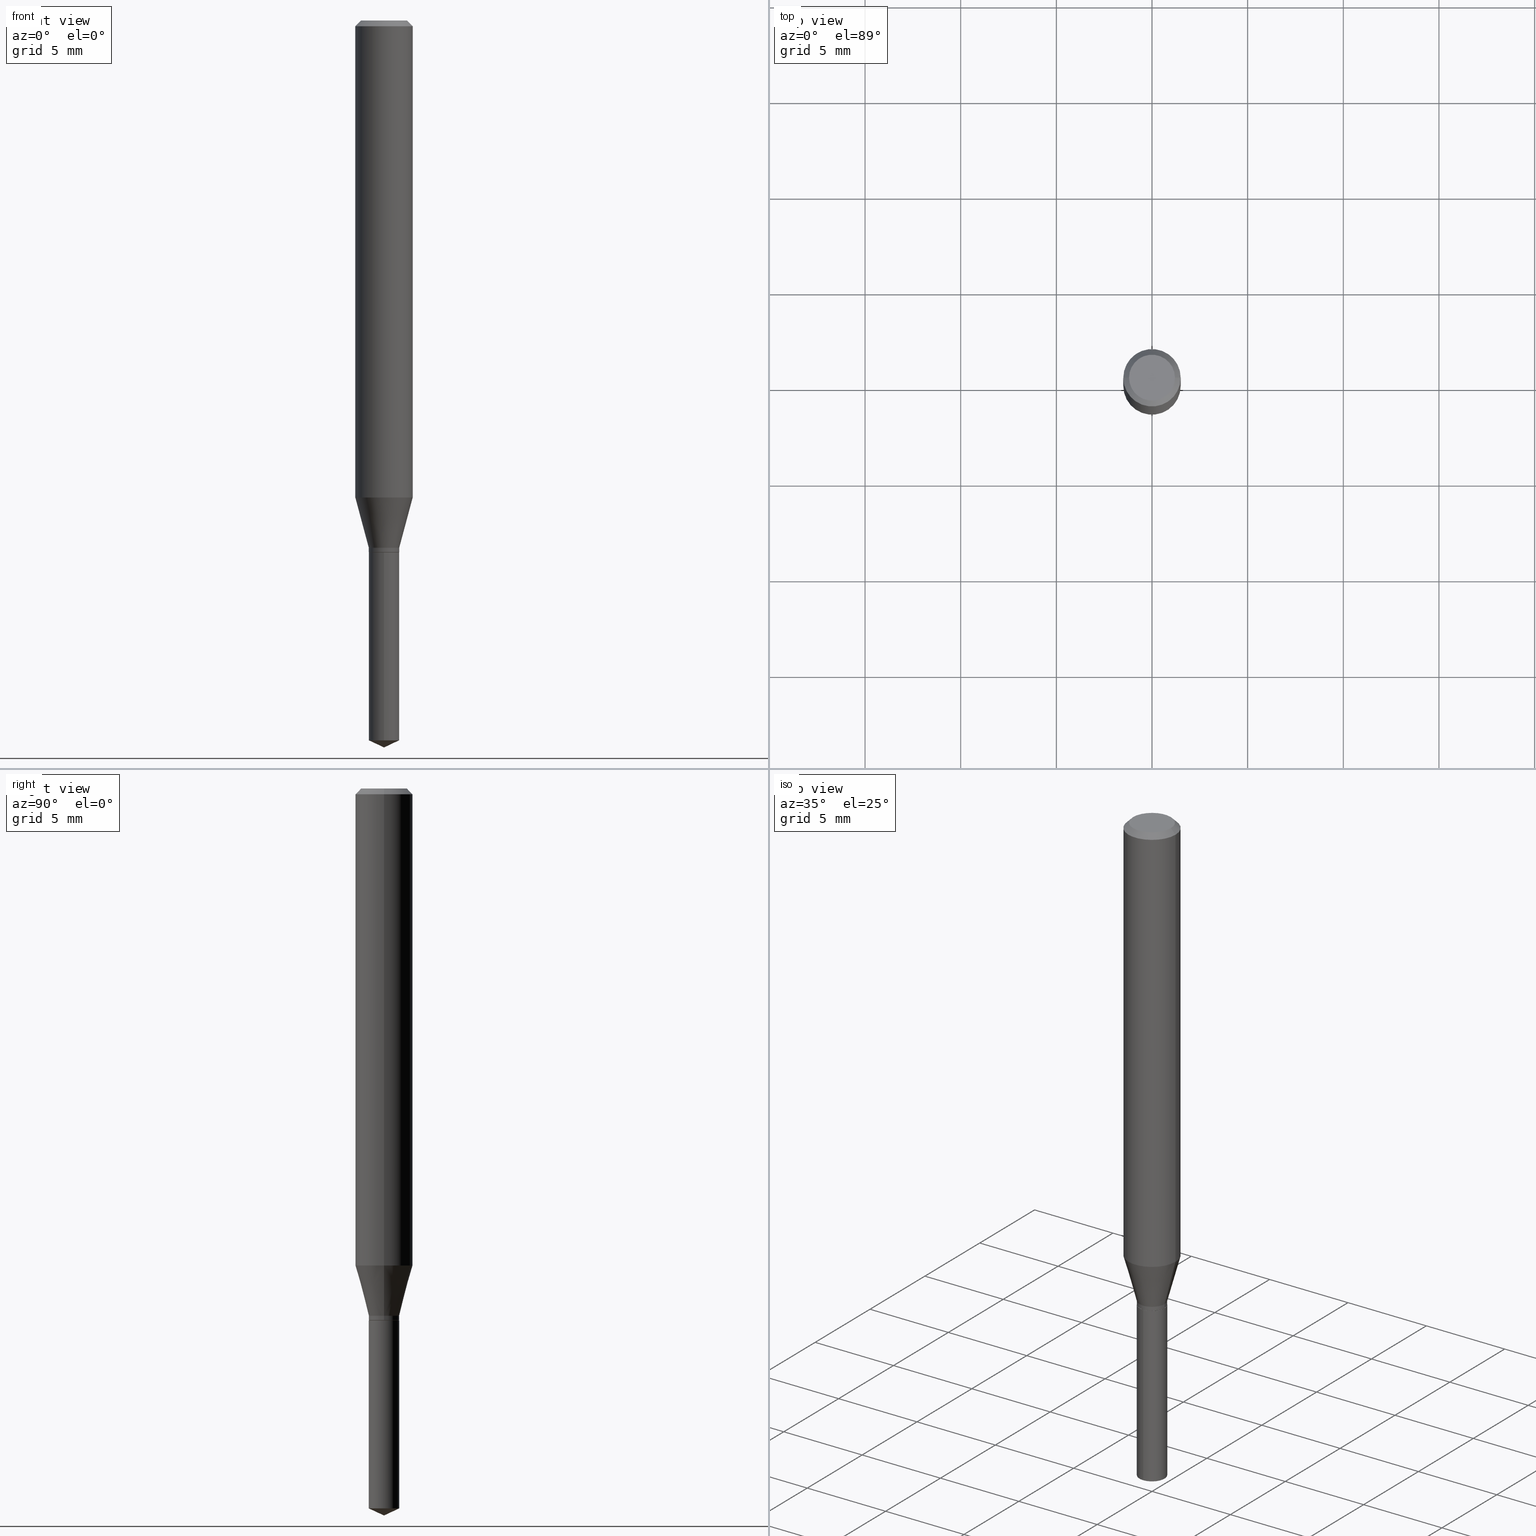
[diagram: canonical four-view strip — front | top / right | iso, engineering-drawing reading convention]
A machine part, canonical four-view strip (front | top / right | iso — engineering-drawing reading convention). The complete STEP part file that produces these views, byte-faithful:
ISO-10303-21;
HEADER;
FILE_DESCRIPTION (( 'STEP AP203' ),
    '1' );
FILE_NAME ('07551.STEP',
    '2024-04-23T22:50:01',
    ( '' ),
    ( '' ),
    'SwSTEP 2.0',
    'SolidWorks 2023',
    '' );
FILE_SCHEMA (( 'CONFIG_CONTROL_DESIGN' ));
ENDSEC;

DATA;
#1 = CARTESIAN_POINT ( 'NONE',  ( 2.676565608369632355E-29, -3.821426325363822773E-15, -1.094500000000000028 ) ) ;
#2 = FACE_OUTER_BOUND ( 'NONE', #464, .T. ) ;
#3 = CARTESIAN_POINT ( 'NONE',  ( -0.03080000000000000099, -3.599929935575601152E-15, -1.094500000000000028 ) ) ;
#4 = VECTOR ( 'NONE', #74, 39.37007874015748143 ) ;
#5 = APPROVAL_PERSON_ORGANIZATION ( #451, #255, #110 ) ;
#6 = LINE ( 'NONE', #230, #221 ) ;
#7 = DIRECTION ( 'NONE',  ( 0.7071067811865453523, -7.319954787623248157E-15, -0.7071067811865496822 ) ) ;
#8 = DIRECTION ( 'NONE',  ( -2.445468806185136597E-29, 3.491481338843145583E-15, 1.000000000000000000 ) ) ;
#9 = EDGE_LOOP ( 'NONE', ( #239, #293 ) ) ;
#10 = CIRCLE ( 'NONE', #340, 0.03080000000000000099 ) ;
#11 = ORIENTED_EDGE ( 'NONE', *, *, #67, .T. ) ;
#12 = AXIS2_PLACEMENT_3D ( 'NONE', #460, #126, #418 ) ;
#13 = CARTESIAN_POINT ( 'NONE',  ( -0.03080000000000000099, -3.602579162749712353E-15, -1.094500000000000028 ) ) ;
#14 = ADVANCED_FACE ( 'NONE', ( #317 ), #132, .F. ) ;
#15 = VERTEX_POINT ( 'NONE', #207 ) ;
#16 = VERTEX_POINT ( 'NONE', #303 ) ;
#17 = DIRECTION ( 'NONE',  ( 2.445470214571801836E-29, -3.491479321953280158E-15, -1.000000000000000000 ) ) ;
#18 = ADVANCED_FACE ( 'NONE', ( #432 ), #374, .T. ) ;
#19 = DIRECTION ( 'NONE',  ( -6.982962677686265922E-15, -1.000000000000000000, 4.363974430773583610E-15 ) ) ;
#20 = PRODUCT_DEFINITION ( 'UNKNOWN', '', #57, #445 ) ;
#21 = DATE_TIME_ROLE ( 'classification_date' ) ;
#22 =( NAMED_UNIT ( * ) PLANE_ANGLE_UNIT ( ) SI_UNIT ( $, .RADIAN. ) );
#23 = UNCERTAINTY_MEASURE_WITH_UNIT (LENGTH_MEASURE( 1.000000000000000082E-05 ), #271, 'distance_accuracy_value', 'NONE');
#24 = DIRECTION ( 'NONE',  ( -2.445468806185136597E-29, 3.491481338843145583E-15, 1.000000000000000000 ) ) ;
#25 = VERTEX_POINT ( 'NONE', #243 ) ;
#26 = PERSON_AND_ORGANIZATION ( #196, #437 ) ;
#27 = VECTOR ( 'NONE', #145, 39.37007874015748143 ) ;
#28 = DIRECTION ( 'NONE',  ( -2.445470214571802116E-29, 3.491479321953280158E-15, 1.000000000000000000 ) ) ;
#29 = AXIS2_PLACEMENT_3D ( 'NONE', #118, #217, #363 ) ;
#30 = APPROVAL_DATE_TIME ( #68, #261 ) ;
#31 = EDGE_CURVE ( 'NONE', #472, #276, #198, .T. ) ;
#32 = CARTESIAN_POINT ( 'NONE',  ( 2.653578201591491275E-29, -3.788606400778696929E-15, -1.085099999999999953 ) ) ;
#33 = ORIENTED_EDGE ( 'NONE', *, *, #463, .F. ) ;
#34 = DIRECTION ( 'NONE',  ( -2.445468806185136597E-29, 3.491481338843145583E-15, 1.000000000000000000 ) ) ;
#35 = ORIENTED_EDGE ( 'NONE', *, *, #289, .F. ) ;
#36 = COORDINATED_UNIVERSAL_TIME_OFFSET ( 5, 0, .BEHIND. ) ;
#37 = DIRECTION ( 'NONE',  ( 1.000000000000000000, -6.982962677686266711E-15, 0.000000000000000000 ) ) ;
#38 = VECTOR ( 'NONE', #398, 39.37007874015748143 ) ;
#39 = AXIS2_PLACEMENT_3D ( 'NONE', #344, #8, #232 ) ;
#40 = FACE_OUTER_BOUND ( 'NONE', #200, .T. ) ;
#41 = CARTESIAN_POINT ( 'NONE',  ( 3.658668015054778287E-29, -5.223602213574301462E-15, -1.496099999999999985 ) ) ;
#42 = DIRECTION ( 'NONE',  ( 2.445468806185136597E-29, -3.491481338843145583E-15, -1.000000000000000000 ) ) ;
#43 = EDGE_CURVE ( 'NONE', #15, #472, #173, .T. ) ;
#44 = FACE_OUTER_BOUND ( 'NONE', #140, .T. ) ;
#45 = AXIS2_PLACEMENT_3D ( 'NONE', #462, #87, #378 ) ;
#46 = CARTESIAN_POINT ( 'NONE',  ( 3.622973757940826067E-29, -5.172644780066808928E-15, -1.481504570299748691 ) ) ;
#47 = LINE ( 'NONE', #353, #347 ) ;
#48 = DATE_AND_TIME ( #187, #367 ) ;
#49 = DIRECTION ( 'NONE',  ( -6.982962677686265922E-15, -1.000000000000000000, 0.000000000000000000 ) ) ;
#50 = ORIENTED_EDGE ( 'NONE', *, *, #289, .T. ) ;
#51 = ORIENTED_EDGE ( 'NONE', *, *, #394, .F. ) ;
#52 = DIRECTION ( 'NONE',  ( -2.445468806185136597E-29, 3.491481338843145583E-15, 1.000000000000000000 ) ) ;
#53 = DIRECTION ( 'NONE',  ( 1.000000000000000000, -6.982962677686265922E-15, 4.876176775795935793E-29 ) ) ;
#54 = EDGE_CURVE ( 'NONE', #25, #355, #473, .T. ) ;
#55 = CLOSED_SHELL ( 'NONE', ( #152, #248, #18, #307, #455 ) ) ;
#56 = AXIS2_PLACEMENT_3D ( 'NONE', #328, #409, #252 ) ;
#57 = PRODUCT_DEFINITION_FORMATION_WITH_SPECIFIED_SOURCE ( 'ANY', '', #385, .NOT_KNOWN. ) ;
#58 = CARTESIAN_POINT ( 'NONE',  ( 0.05905000000000011628, -3.839357142326876836E-15, -0.9815355900899632724 ) ) ;
#59 = DIRECTION ( 'NONE',  ( 1.000000000000000000, -6.982962677686273810E-15, 0.000000000000000000 ) ) ;
#60 = FACE_OUTER_BOUND ( 'NONE', #81, .T. ) ;
#61 = VECTOR ( 'NONE', #305, 39.37007874015748143 ) ;
#62 = AXIS2_PLACEMENT_3D ( 'NONE', #202, #233, #266 ) ;
#63 = ORIENTED_EDGE ( 'NONE', *, *, #361, .T. ) ;
#64 = DIRECTION ( 'NONE',  ( 6.982962677686265922E-15, 1.000000000000000000, -3.491479321953280158E-15 ) ) ;
#65 = CALENDAR_DATE ( 2024, 23, 4 ) ;
#66 = CARTESIAN_POINT ( 'NONE',  ( -9.261968845786000133E-28, 1.322362114038720264E-13, 37.87397874015748300 ) ) ;
#67 = EDGE_CURVE ( 'NONE', #326, #384, #149, .T. ) ;
#68 = DATE_AND_TIME ( #65, #285 ) ;
#69 = AXIS2_PLACEMENT_3D ( 'NONE', #32, #370, #487 ) ;
#70 = CYLINDRICAL_SURFACE ( 'NONE', #264, 0.03130000000000000143 ) ;
#71 = CONICAL_SURFACE ( 'NONE', #399, 0.03080000000000000099, 0.7853981633972775267 ) ;
#72 = ORIENTED_EDGE ( 'NONE', *, *, #228, .F. ) ;
#73 = CALENDAR_DATE ( 2024, 23, 4 ) ;
#74 = DIRECTION ( 'NONE',  ( -6.328713451373384367E-15, -0.9063077870366504918, 0.4226182617406983866 ) ) ;
#75 = ORIENTED_EDGE ( 'NONE', *, *, #388, .T. ) ;
#76 = LINE ( 'NONE', #222, #478 ) ;
#77 = EDGE_CURVE ( 'NONE', #355, #326, #253, .T. ) ;
#78 = CARTESIAN_POINT ( 'NONE',  ( 0.000000000000000000, 0.000000000000000000, 0.000000000000000000 ) ) ;
#79 = AXIS2_PLACEMENT_3D ( 'NONE', #254, #28, #415 ) ;
#80 = CONICAL_SURFACE ( 'NONE', #106, 84.42940631927498885, 1.134464013796318893 ) ;
#81 = EDGE_LOOP ( 'NONE', ( #11, #400, #235, #35 ) ) ;
#82 = LINE ( 'NONE', #41, #416 ) ;
#83 = CARTESIAN_POINT ( 'NONE',  ( 3.622973757940826067E-29, -5.172644780066808928E-15, -1.481504570299748691 ) ) ;
#84 =( LENGTH_UNIT ( ) NAMED_UNIT ( * ) SI_UNIT ( $, .METRE. ) );
#85 = DIRECTION ( 'NONE',  ( -2.445468806185136597E-29, 3.491481338843145583E-15, 1.000000000000000000 ) ) ;
#86 = EDGE_LOOP ( 'NONE', ( #282, #366, #263, #425 ) ) ;
#87 = DIRECTION ( 'NONE',  ( 2.438088387897960049E-29, -3.491481338843145188E-15, -1.000000000000000000 ) ) ;
#88 = VECTOR ( 'NONE', #471, 39.37007874015748143 ) ;
#89 = VECTOR ( 'NONE', #262, 39.37007874015748143 ) ;
#90 = ORIENTED_EDGE ( 'NONE', *, *, #111, .F. ) ;
#91 = FACE_OUTER_BOUND ( 'NONE', #483, .T. ) ;
#92 = VERTEX_POINT ( 'NONE', #58 ) ;
#93 = ADVANCED_FACE ( 'NONE', ( #60 ), #424, .T. ) ;
#94 = DIRECTION ( 'NONE',  ( -2.445468806185136597E-29, 3.491481338843145583E-15, 1.000000000000000000 ) ) ;
#95 = CARTESIAN_POINT ( 'NONE',  ( -9.261968845786000133E-28, 1.322362114038720264E-13, 37.87397874015748300 ) ) ;
#96 = AXIS2_PLACEMENT_3D ( 'NONE', #486, #338, #108 ) ;
#97 = CIRCLE ( 'NONE', #169, 0.03130000000000000143 ) ;
#98 = ORIENTED_EDGE ( 'NONE', *, *, #283, .T. ) ;
#99 = CARTESIAN_POINT ( 'NONE',  ( 0.03130000000000000143, -2.185667318115801601E-16, 1.526243330824128031E-30 ) ) ;
#100 = COORDINATED_UNIVERSAL_TIME_OFFSET ( 5, 0, .BEHIND. ) ;
#101 = ORIENTED_EDGE ( 'NONE', *, *, #477, .F. ) ;
#102 = CONICAL_SURFACE ( 'NONE', #426, 0.05904999999999999832, 0.7853981633974452814 ) ;
#103 = EDGE_CURVE ( 'NONE', #16, #384, #212, .T. ) ;
#104 = ORIENTED_EDGE ( 'NONE', *, *, #123, .T. ) ;
#105 = DIRECTION ( 'NONE',  ( -2.445468806185136597E-29, 3.491481338843145583E-15, 1.000000000000000000 ) ) ;
#106 = AXIS2_PLACEMENT_3D ( 'NONE', #66, #193, #308 ) ;
#107 = DIRECTION ( 'NONE',  ( -2.445468806185136597E-29, 3.491481338843145583E-15, 1.000000000000000000 ) ) ;
#108 = DIRECTION ( 'NONE',  ( 1.000000000000000000, -6.982962677686266711E-15, 0.000000000000000000 ) ) ;
#109 = ORIENTED_EDGE ( 'NONE', *, *, #77, .T. ) ;
#110 = APPROVAL_ROLE ( '' ) ;
#111 = EDGE_CURVE ( 'NONE', #144, #191, #225, .T. ) ;
#112 = EDGE_LOOP ( 'NONE', ( #101, #204, #234 ) ) ;
#113 = CYLINDRICAL_SURFACE ( 'NONE', #458, 0.05905000000000006077 ) ;
#114 = EDGE_LOOP ( 'NONE', ( #359, #184, #325, #322 ) ) ;
#115 = PERSON_AND_ORGANIZATION_ROLE ( 'design_supplier' ) ;
#116 = DIRECTION ( 'NONE',  ( 1.000000000000000000, -6.982962677686266711E-15, 4.876185090822587894E-29 ) ) ;
#117 = ADVANCED_FACE ( 'NONE', ( #189 ), #226, .T. ) ;
#118 = CARTESIAN_POINT ( 'NONE',  ( 2.675342873966538993E-29, -3.819680584694400481E-15, -1.093999999999999861 ) ) ;
#119 = CC_DESIGN_APPROVAL ( #430, ( #20 ) ) ;
#120 = CC_DESIGN_SECURITY_CLASSIFICATION ( #247, ( #57 ) ) ;
#121 = CARTESIAN_POINT ( 'NONE',  ( 0.000000000000000000, 0.000000000000000000, 0.000000000000000000 ) ) ;
#122 = CARTESIAN_POINT ( 'NONE',  ( 2.888098660104664204E-31, -4.123439461173780263E-17, -0.01181000000000007218 ) ) ;
#123 = EDGE_CURVE ( 'NONE', #319, #25, #10, .T. ) ;
#124 = PRODUCT_DEFINITION_SHAPE ( 'NONE', 'NONE',  #20 ) ;
#125 = CYLINDRICAL_SURFACE ( 'NONE', #375, 0.03130000000000000143 ) ;
#126 = DIRECTION ( 'NONE',  ( -2.445468806185136597E-29, 3.491481338843145583E-15, 1.000000000000000000 ) ) ;
#127 = ORIENTED_EDGE ( 'NONE', *, *, #67, .F. ) ;
#128 = DIRECTION ( 'NONE',  ( -0.7071067811864267805, 7.493145998869918709E-15, 0.7071067811866682540 ) ) ;
#129 = AXIS2_PLACEMENT_3D ( 'NONE', #122, #42, #280 ) ;
#130 = ORIENTED_EDGE ( 'NONE', *, *, #273, .F. ) ;
#131 = DIRECTION ( 'NONE',  ( 0.2588190451025211281, 1.565188264969623940E-15, 0.9659258262890682012 ) ) ;
#132 = PLANE ( 'NONE',  #219 ) ;
#133 = ORIENTED_EDGE ( 'NONE', *, *, #134, .T. ) ;
#134 = EDGE_CURVE ( 'NONE', #276, #472, #291, .T. ) ;
#135 = DIRECTION ( 'NONE',  ( -2.445468806185136597E-29, 3.491481338843145583E-15, 1.000000000000000000 ) ) ;
#136 = CONICAL_SURFACE ( 'NONE', #407, 0.03080000000000000099, 0.7853981633972775267 ) ;
#137 = ORIENTED_EDGE ( 'NONE', *, *, #394, .T. ) ;
#138 = DIRECTION ( 'NONE',  ( -2.445470214571802116E-29, 3.491479321953280158E-15, 1.000000000000000000 ) ) ;
#139 = EDGE_LOOP ( 'NONE', ( #215, #63, #229, #443 ) ) ;
#140 = EDGE_LOOP ( 'NONE', ( #251, #284, #448, #278 ) ) ;
#141 = ADVANCED_FACE ( 'NONE', ( #456 ), #181, .T. ) ;
#142 = VECTOR ( 'NONE', #244, 39.37007874015748143 ) ;
#143 = CIRCLE ( 'NONE', #354, 0.05905000000000011628 ) ;
#144 = VERTEX_POINT ( 'NONE', #341 ) ;
#145 = DIRECTION ( 'NONE',  ( -0.7071067811865453523, 2.468850131082234184E-15, -0.7071067811865496822 ) ) ;
#146 = VERTEX_POINT ( 'NONE', #343 ) ;
#147 = CALENDAR_DATE ( 2024, 23, 4 ) ;
#148 = FACE_OUTER_BOUND ( 'NONE', #114, .T. ) ;
#149 = CIRCLE ( 'NONE', #364, 0.03130000000000000143 ) ;
#150 = CIRCLE ( 'NONE', #241, 0.05904999999999999832 ) ;
#151 = DIRECTION ( 'NONE',  ( 1.000000000000000000, -6.982962677686273810E-15, 0.000000000000000000 ) ) ;
#152 = ADVANCED_FACE ( 'NONE', ( #148 ), #70, .T. ) ;
#153 = PERSON_AND_ORGANIZATION_ROLE ( 'design_owner' ) ;
#154 = LINE ( 'NONE', #258, #4 ) ;
#155 = DIRECTION ( 'NONE',  ( -2.445470214571802116E-29, 3.491479321953280158E-15, 1.000000000000000000 ) ) ;
#156 = EDGE_CURVE ( 'NONE', #92, #175, #76, .T. ) ;
#157 = DIRECTION ( 'NONE',  ( 1.000000000000000000, -6.982962677686273810E-15, 0.000000000000000000 ) ) ;
#158 = AXIS2_PLACEMENT_3D ( 'NONE', #249, #17, #64 ) ;
#159 = CARTESIAN_POINT ( 'NONE',  ( 2.400314667725525909E-29, -3.427013196209501521E-15, -0.9815355900899632724 ) ) ;
#160 = DIRECTION ( 'NONE',  ( -1.000000000000000000, 6.982962677686266711E-15, 0.000000000000000000 ) ) ;
#161 = LENGTH_MEASURE_WITH_UNIT ( LENGTH_MEASURE( 0.02539999999999999897 ), #84 );
#162 = PLANE ( 'NONE',  #45 ) ;
#163 = ORIENTED_EDGE ( 'NONE', *, *, #156, .T. ) ;
#164 = AXIS2_PLACEMENT_3D ( 'NONE', #348, #274, #459 ) ;
#165 = ORIENTED_EDGE ( 'NONE', *, *, #31, .T. ) ;
#166 = DIRECTION ( 'NONE',  ( -2.445470214571802396E-29, 3.491479321953280158E-15, 1.000000000000000000 ) ) ;
#167 = EDGE_CURVE ( 'NONE', #355, #16, #179, .T. ) ;
#168 = CC_DESIGN_PERSON_AND_ORGANIZATION_ASSIGNMENT ( #192, #306, ( #57 ) ) ;
#169 = AXIS2_PLACEMENT_3D ( 'NONE', #316, #94, #157 ) ;
#170 = VERTEX_POINT ( 'NONE', #452 ) ;
#171 = DIRECTION ( 'NONE',  ( 1.000000000000000000, -6.982962677686273810E-15, 0.000000000000000000 ) ) ;
#172 = EDGE_LOOP ( 'NONE', ( #474, #75, #50, #453 ) ) ;
#173 = LINE ( 'NONE', #250, #88 ) ;
#174 = EDGE_CURVE ( 'NONE', #146, #191, #368, .T. ) ;
#175 = VERTEX_POINT ( 'NONE', #183 ) ;
#176 = PERSON_AND_ORGANIZATION ( #196, #437 ) ;
#177 = ORIENTED_EDGE ( 'NONE', *, *, #167, .F. ) ;
#178 = APPROVAL_STATUS ( 'not_yet_approved' ) ;
#179 = CIRCLE ( 'NONE', #457, 0.03130000000000000143 ) ;
#180 = CIRCLE ( 'NONE', #12, 0.04724000000000000421 ) ;
#181 = CYLINDRICAL_SURFACE ( 'NONE', #208, 0.05905000000000006077 ) ;
#182 = EDGE_LOOP ( 'NONE', ( #51, #371 ) ) ;
#183 = CARTESIAN_POINT ( 'NONE',  ( 0.05904999999999999832, -4.535783407291118600E-16, -0.01181000000000007218 ) ) ;
#184 = ORIENTED_EDGE ( 'NONE', *, *, #43, .T. ) ;
#185 = DIRECTION ( 'NONE',  ( -2.445468806185136877E-29, 3.491481338843145188E-15, 1.000000000000000000 ) ) ;
#186 = EDGE_LOOP ( 'NONE', ( #137, #98, #177, #259 ) ) ;
#187 = CALENDAR_DATE ( 2024, 23, 4 ) ;
#188 = AXIS2_PLACEMENT_3D ( 'NONE', #46, #417, #461 ) ;
#189 = FACE_OUTER_BOUND ( 'NONE', #172, .T. ) ;
#190 = EDGE_CURVE ( 'NONE', #175, #191, #310, .T. ) ;
#191 = VERTEX_POINT ( 'NONE', #446 ) ;
#192 = PERSON_AND_ORGANIZATION ( #196, #437 ) ;
#193 = DIRECTION ( 'NONE',  ( -2.445470214571802116E-29, 3.491479321953280158E-15, 1.000000000000000000 ) ) ;
#194 = EDGE_CURVE ( 'NONE', #384, #144, #376, .T. ) ;
#195 = DIRECTION ( 'NONE',  ( 1.000000000000000000, -6.982962677686272233E-15, 0.000000000000000000 ) ) ;
#196 = PERSON ( 'UNSPECIFIED', 'UNSPECIFIED', 'UNSPECIFIED', ('UNSPECIFIED'), ('UNSPECIFIED'), ('UNSPECIFIED') ) ;
#197 = DIRECTION ( 'NONE',  ( 1.000000000000000000, -6.982962677686272233E-15, 0.000000000000000000 ) ) ;
#198 = CIRCLE ( 'NONE', #406, 0.03130000000000000143 ) ;
#199 = VECTOR ( 'NONE', #128, 39.37007874015748143 ) ;
#200 = EDGE_LOOP ( 'NONE', ( #72, #468, #480 ) ) ;
#201 = DIRECTION ( 'NONE',  ( 2.445468806185136597E-29, -3.491481338843145583E-15, -1.000000000000000000 ) ) ;
#202 = CARTESIAN_POINT ( 'NONE',  ( 0.000000000000000000, 0.000000000000000000, 0.000000000000000000 ) ) ;
#203 = EDGE_CURVE ( 'NONE', #191, #175, #150, .T. ) ;
#204 = ORIENTED_EDGE ( 'NONE', *, *, #228, .T. ) ;
#205 = ORIENTED_EDGE ( 'NONE', *, *, #174, .T. ) ;
#206 = FACE_OUTER_BOUND ( 'NONE', #238, .T. ) ;
#207 = CARTESIAN_POINT ( 'NONE',  ( 2.223998762929476067E-16, 0.03129999999999482502, -1.481504570299748691 ) ) ;
#208 = AXIS2_PLACEMENT_3D ( 'NONE', #302, #482, #405 ) ;
#209 =( GEOMETRIC_REPRESENTATION_CONTEXT ( 3 ) GLOBAL_UNCERTAINTY_ASSIGNED_CONTEXT ( ( #23 ) ) GLOBAL_UNIT_ASSIGNED_CONTEXT ( ( #271, #22, #360 ) ) REPRESENTATION_CONTEXT ( 'NONE', 'WORKASPACE' ) );
#210 = CARTESIAN_POINT ( 'NONE',  ( 2.676565608369631794E-29, -3.821426325363822773E-15, -1.094499999999999806 ) ) ;
#211 = CC_DESIGN_DATE_AND_TIME_ASSIGNMENT ( #299, #444, ( #20 ) ) ;
#212 = LINE ( 'NONE', #213, #391 ) ;
#213 = CARTESIAN_POINT ( 'NONE',  ( -0.03130000000000000143, 2.223998762929113684E-16, -1.539626683249785616E-30 ) ) ;
#214 = CIRCLE ( 'NONE', #488, 0.04724000000000000421 ) ;
#215 = ORIENTED_EDGE ( 'NONE', *, *, #43, .F. ) ;
#216 = PERSON_AND_ORGANIZATION ( #196, #437 ) ;
#217 = DIRECTION ( 'NONE',  ( -2.445468806185136597E-29, 3.491481338843145583E-15, 1.000000000000000000 ) ) ;
#218 = EDGE_CURVE ( 'NONE', #144, #92, #143, .T. ) ;
#219 = AXIS2_PLACEMENT_3D ( 'NONE', #281, #237, #53 ) ;
#220 = ORIENTED_EDGE ( 'NONE', *, *, #218, .T. ) ;
#221 = VECTOR ( 'NONE', #7, 39.37007874015748143 ) ;
#222 = CARTESIAN_POINT ( 'NONE',  ( 0.05905000000000006077, -4.123439461173744764E-16, 2.879382386107503023E-30 ) ) ;
#223 = APPROVAL_STATUS ( 'not_yet_approved' ) ;
#224 = CARTESIAN_POINT ( 'NONE',  ( -0.03130000000000000143, -3.566206524485785609E-15, -1.085099999999999953 ) ) ;
#225 = LINE ( 'NONE', #414, #61 ) ;
#226 = CONICAL_SURFACE ( 'NONE', #69, 0.03130000000000000143, 0.2617993877991497964 ) ;
#227 = DIRECTION ( 'NONE',  ( 1.000000000000000000, -6.982962677686266711E-15, 4.876176775795935793E-29 ) ) ;
#228 = EDGE_CURVE ( 'NONE', #395, #428, #154, .T. ) ;
#229 = ORIENTED_EDGE ( 'NONE', *, *, #413, .T. ) ;
#230 = CARTESIAN_POINT ( 'NONE',  ( 0.05904999999999999832, -4.463468013801466955E-16, -0.01181000000000007218 ) ) ;
#231 = CARTESIAN_POINT ( 'NONE',  ( -0.03130000000000000143, -3.581743616443637386E-15, -1.085099999999999953 ) ) ;
#232 = DIRECTION ( 'NONE',  ( 1.000000000000000000, -6.982962677686272233E-15, 0.000000000000000000 ) ) ;
#233 = DIRECTION ( 'NONE',  ( -2.445468806185136597E-29, 3.491481338843145583E-15, 1.000000000000000000 ) ) ;
#234 = ORIENTED_EDGE ( 'NONE', *, *, #361, .F. ) ;
#235 = ORIENTED_EDGE ( 'NONE', *, *, #312, .F. ) ;
#236 = CARTESIAN_POINT ( 'NONE',  ( 0.03130000000000000143, -4.007173132590277064E-15, -1.085099999999999953 ) ) ;
#237 = DIRECTION ( 'NONE',  ( -2.438088387897960049E-29, 3.491481338843145188E-15, 1.000000000000000000 ) ) ;
#238 = EDGE_LOOP ( 'NONE', ( #369, #104, #408, #130 ) ) ;
#239 = ORIENTED_EDGE ( 'NONE', *, *, #463, .T. ) ;
#240 = ADVANCED_FACE ( 'NONE', ( #404 ), #113, .T. ) ;
#241 = AXIS2_PLACEMENT_3D ( 'NONE', #260, #107, #296 ) ;
#242 = PLANE ( 'NONE',  #158 ) ;
#243 = CARTESIAN_POINT ( 'NONE',  ( 0.03080000000000000099, -4.036501575836559902E-15, -1.094500000000000028 ) ) ;
#244 = DIRECTION ( 'NONE',  ( 0.7071067811864267805, -2.468850131080992517E-15, 0.7071067811866682540 ) ) ;
#245 = DATE_AND_TIME ( #288, #277 ) ;
#246 = AXIS2_PLACEMENT_3D ( 'NONE', #159, #85, #427 ) ;
#247 = SECURITY_CLASSIFICATION ( '', '', #339 ) ;
#248 = ADVANCED_FACE ( 'NONE', ( #40 ), #80, .T. ) ;
#249 = CARTESIAN_POINT ( 'NONE',  ( 2.676565608369631794E-29, -3.821426325363822773E-15, -1.094499999999999806 ) ) ;
#250 = CARTESIAN_POINT ( 'NONE',  ( 2.223998762929380910E-16, 0.03129999999999617810, -1.094500000000000028 ) ) ;
#251 = ORIENTED_EDGE ( 'NONE', *, *, #356, .F. ) ;
#252 = DIRECTION ( 'NONE',  ( 1.000000000000000000, 0.000000000000000000, 0.000000000000000000 ) ) ;
#253 = LINE ( 'NONE', #99, #38 ) ;
#254 = CARTESIAN_POINT ( 'NONE',  ( 2.676565608369631794E-29, -3.821426325363822773E-15, -1.094499999999999806 ) ) ;
#255 = APPROVAL ( #223, 'UNSPECIFIED' ) ;
#256 = SHAPE_DEFINITION_REPRESENTATION ( #124, #287 ) ;
#257 = AXIS2_PLACEMENT_3D ( 'NONE', #83, #383, #49 ) ;
#258 = CARTESIAN_POINT ( 'NONE',  ( 3.658664905062460986E-29, -5.223606628546217219E-15, -1.496099999999999985 ) ) ;
#259 = ORIENTED_EDGE ( 'NONE', *, *, #54, .F. ) ;
#260 = CARTESIAN_POINT ( 'NONE',  ( 2.888098660104664204E-31, -4.123439461173780263E-17, -0.01181000000000007218 ) ) ;
#261 = APPROVAL ( #479, 'UNSPECIFIED' ) ;
#262 = DIRECTION ( 'NONE',  ( -0.2588190451025211281, 5.211531920934548675E-15, 0.9659258262890682012 ) ) ;
#263 = ORIENTED_EDGE ( 'NONE', *, *, #190, .F. ) ;
#264 = AXIS2_PLACEMENT_3D ( 'NONE', #442, #155, #300 ) ;
#265 = APPROVAL_PERSON_ORGANIZATION ( #26, #430, #481 ) ;
#266 = DIRECTION ( 'NONE',  ( 1.000000000000000000, -6.982962677686266711E-15, 4.876176775795935793E-29 ) ) ;
#267 = APPROVAL_PERSON_ORGANIZATION ( #476, #261, #402 ) ;
#268 = MANIFOLD_SOLID_BREP ( 'Body-Move/Copy2[2]', #323 ) ;
#269 = CARTESIAN_POINT ( 'NONE',  ( 2.223998762929477053E-16, 0.03129999999999618504, -1.094500000000000028 ) ) ;
#270 = CARTESIAN_POINT ( 'NONE',  ( 0.03130000000000000143, -4.038247316505981405E-15, -1.093999999999999861 ) ) ;
#271 =( CONVERSION_BASED_UNIT ( 'INCH', #161 ) LENGTH_UNIT ( ) NAMED_UNIT ( #411 ) );
#272 = FACE_OUTER_BOUND ( 'NONE', #440, .T. ) ;
#273 = EDGE_CURVE ( 'NONE', #16, #355, #447, .T. ) ;
#274 = DIRECTION ( 'NONE',  ( -2.445470214571802116E-29, 3.491479321953280158E-15, 1.000000000000000000 ) ) ;
#275 = CIRCLE ( 'NONE', #188, 0.03130000000000000143 ) ;
#276 = VERTEX_POINT ( 'NONE', #422 ) ;
#277 = LOCAL_TIME ( 18, 50, 1.000000000000000000, #100 ) ;
#278 = ORIENTED_EDGE ( 'NONE', *, *, #174, .F. ) ;
#279 = ADVANCED_FACE ( 'NONE', ( #423 ), #162, .F. ) ;
#280 = DIRECTION ( 'NONE',  ( -1.000000000000000000, 6.982962677686266711E-15, 0.000000000000000000 ) ) ;
#281 = CARTESIAN_POINT ( 'NONE',  ( -7.129005734098875642E-30, -8.675334814106575998E-15, -1.094500000000000028 ) ) ;
#282 = ORIENTED_EDGE ( 'NONE', *, *, #312, .T. ) ;
#283 = EDGE_CURVE ( 'NONE', #319, #16, #320, .T. ) ;
#284 = ORIENTED_EDGE ( 'NONE', *, *, #379, .T. ) ;
#285 = LOCAL_TIME ( 18, 50, 1.000000000000000000, #297 ) ;
#286 = CARTESIAN_POINT ( 'NONE',  ( 2.653578201591491275E-29, -3.788606400778696929E-15, -1.085099999999999953 ) ) ;
#287 = ADVANCED_BREP_SHAPE_REPRESENTATION ( '07551', ( #433, #268, #56 ), #209 ) ;
#288 = CALENDAR_DATE ( 2024, 23, 4 ) ;
#289 = EDGE_CURVE ( 'NONE', #326, #92, #387, .T. ) ;
#290 = PERSON_AND_ORGANIZATION_ROLE ( 'classification_officer' ) ;
#291 = CIRCLE ( 'NONE', #79, 0.03130000000000000143 ) ;
#292 = CIRCLE ( 'NONE', #257, 0.03130000000000000143 ) ;
#293 = ORIENTED_EDGE ( 'NONE', *, *, #356, .T. ) ;
#294 = COORDINATED_UNIVERSAL_TIME_OFFSET ( 5, 0, .BEHIND. ) ;
#295 = CC_DESIGN_PERSON_AND_ORGANIZATION_ASSIGNMENT ( #372, #335, ( #20 ) ) ;
#296 = DIRECTION ( 'NONE',  ( 1.000000000000000000, -6.982962677686266711E-15, 0.000000000000000000 ) ) ;
#297 = COORDINATED_UNIVERSAL_TIME_OFFSET ( 5, 0, .BEHIND. ) ;
#298 = EDGE_LOOP ( 'NONE', ( #133, #165 ) ) ;
#299 = DATE_AND_TIME ( #147, #392 ) ;
#300 = DIRECTION ( 'NONE',  ( -6.982962677686265922E-15, -1.000000000000000000, 4.363974430773583610E-15 ) ) ;
#301 = CC_DESIGN_APPROVAL ( #261, ( #247 ) ) ;
#302 = CARTESIAN_POINT ( 'NONE',  ( 0.000000000000000000, 0.000000000000000000, 0.000000000000000000 ) ) ;
#303 = CARTESIAN_POINT ( 'NONE',  ( -0.03130000000000000143, -3.581743616443637386E-15, -1.093999999999999861 ) ) ;
#304 = APPROVAL_DATE_TIME ( #441, #430 ) ;
#305 = DIRECTION ( 'NONE',  ( -2.445468806185136877E-29, 3.491481338843145188E-15, 1.000000000000000000 ) ) ;
#306 = PERSON_AND_ORGANIZATION_ROLE ( 'creator' ) ;
#307 = ADVANCED_FACE ( 'NONE', ( #314 ), #351, .T. ) ;
#308 = DIRECTION ( 'NONE',  ( -6.982962677686269077E-15, -1.000000000000000000, 3.520397390770426654E-15 ) ) ;
#309 = DIRECTION ( 'NONE',  ( -2.445468806185136597E-29, 3.491481338843145583E-15, 1.000000000000000000 ) ) ;
#310 = CIRCLE ( 'NONE', #96, 0.05904999999999999832 ) ;
#311 = CIRCLE ( 'NONE', #246, 0.05905000000000011628 ) ;
#312 = EDGE_CURVE ( 'NONE', #92, #144, #311, .T. ) ;
#313 = CARTESIAN_POINT ( 'NONE',  ( 0.03130000000000000143, -4.007173132590277064E-15, -1.085099999999999953 ) ) ;
#314 = FACE_OUTER_BOUND ( 'NONE', #139, .T. ) ;
#315 = CARTESIAN_POINT ( 'NONE',  ( 2.676565608369632355E-29, -3.821426325363822773E-15, -1.094500000000000028 ) ) ;
#316 = CARTESIAN_POINT ( 'NONE',  ( 2.653578201591491275E-29, -3.788606400778696929E-15, -1.085099999999999953 ) ) ;
#317 = FACE_OUTER_BOUND ( 'NONE', #182, .T. ) ;
#318 = ADVANCED_FACE ( 'NONE', ( #272 ), #381, .T. ) ;
#319 = VERTEX_POINT ( 'NONE', #3 ) ;
#320 = LINE ( 'NONE', #13, #199 ) ;
#321 = CARTESIAN_POINT ( 'NONE',  ( 2.653578201591491275E-29, -3.788606400778696929E-15, -1.085099999999999953 ) ) ;
#322 = ORIENTED_EDGE ( 'NONE', *, *, #413, .F. ) ;
#323 = CLOSED_SHELL ( 'NONE', ( #401, #419, #240, #93, #346, #490, #117, #141, #318, #279, #14, #332 ) ) ;
#324 = CC_DESIGN_APPROVAL ( #255, ( #57 ) ) ;
#325 = ORIENTED_EDGE ( 'NONE', *, *, #134, .F. ) ;
#326 = VERTEX_POINT ( 'NONE', #236 ) ;
#327 = DIRECTION ( 'NONE',  ( -2.445468806185136597E-29, 3.491481338843145583E-15, 1.000000000000000000 ) ) ;
#328 = CARTESIAN_POINT ( 'NONE',  ( 0.000000000000000000, 0.000000000000000000, 0.000000000000000000 ) ) ;
#329 = AXIS2_PLACEMENT_3D ( 'NONE', #95, #393, #439 ) ;
#330 = LOCAL_TIME ( 18, 50, 1.000000000000000000, #294 ) ;
#331 = ORIENTED_EDGE ( 'NONE', *, *, #379, .F. ) ;
#332 = ADVANCED_FACE ( 'NONE', ( #206 ), #136, .T. ) ;
#333 = DIRECTION ( 'NONE',  ( -2.445468806185136597E-29, 3.491481338843145583E-15, 1.000000000000000000 ) ) ;
#334 = ORIENTED_EDGE ( 'NONE', *, *, #77, .F. ) ;
#335 = PERSON_AND_ORGANIZATION_ROLE ( 'creator' ) ;
#336 = DIRECTION ( 'NONE',  ( -2.445468806185136597E-29, 3.491481338843145583E-15, 1.000000000000000000 ) ) ;
#337 = ORIENTED_EDGE ( 'NONE', *, *, #103, .F. ) ;
#338 = DIRECTION ( 'NONE',  ( -2.445468806185136597E-29, 3.491481338843145583E-15, 1.000000000000000000 ) ) ;
#339 = SECURITY_CLASSIFICATION_LEVEL ( 'unclassified' ) ;
#340 = AXIS2_PLACEMENT_3D ( 'NONE', #1, #34, #410 ) ;
#341 = CARTESIAN_POINT ( 'NONE',  ( -0.05905000000000011628, -3.007437710743162028E-15, -0.9815355900899632724 ) ) ;
#342 = PRODUCT_RELATED_PRODUCT_CATEGORY ( 'detail', '', ( #385 ) ) ;
#343 = CARTESIAN_POINT ( 'NONE',  ( -0.04724000000000000421, 3.504923541997677355E-16, -3.380025165670481712E-19 ) ) ;
#344 = CARTESIAN_POINT ( 'NONE',  ( 2.676565608369632355E-29, -3.821426325363822773E-15, -1.094500000000000028 ) ) ;
#345 = AXIS2_PLACEMENT_3D ( 'NONE', #321, #135, #59 ) ;
#346 = ADVANCED_FACE ( 'NONE', ( #91 ), #350, .T. ) ;
#347 = VECTOR ( 'NONE', #166, 39.37007874015748143 ) ;
#348 = CARTESIAN_POINT ( 'NONE',  ( 2.676565608369631794E-29, -3.821426325363822773E-15, -1.094499999999999806 ) ) ;
#349 = DIRECTION ( 'NONE',  ( 6.439704144417037453E-15, 0.9063077870366533784, 0.4226182617406920583 ) ) ;
#350 = CYLINDRICAL_SURFACE ( 'NONE', #62, 0.03130000000000000143 ) ;
#351 = CYLINDRICAL_SURFACE ( 'NONE', #164, 0.03130000000000000143 ) ;
#352 = CC_DESIGN_PERSON_AND_ORGANIZATION_ASSIGNMENT ( #176, #290, ( #247 ) ) ;
#353 = CARTESIAN_POINT ( 'NONE',  ( -2.185667318115533881E-16, -0.03130000000000382476, -1.094499999999999806 ) ) ;
#354 = AXIS2_PLACEMENT_3D ( 'NONE', #373, #333, #37 ) ;
#355 = VERTEX_POINT ( 'NONE', #270 ) ;
#356 = EDGE_CURVE ( 'NONE', #170, #146, #180, .T. ) ;
#357 = FACE_OUTER_BOUND ( 'NONE', #298, .T. ) ;
#358 = DIRECTION ( 'NONE',  ( -2.445468806185136877E-29, 3.491481338843145188E-15, 1.000000000000000000 ) ) ;
#359 = ORIENTED_EDGE ( 'NONE', *, *, #470, .T. ) ;
#360 =( NAMED_UNIT ( * ) SI_UNIT ( $, .STERADIAN. ) SOLID_ANGLE_UNIT ( ) );
#361 = EDGE_CURVE ( 'NONE', #15, #428, #292, .T. ) ;
#362 = APPLICATION_PROTOCOL_DEFINITION ( 'international standard', 'config_control_design', 1994, #421 ) ;
#363 = DIRECTION ( 'NONE',  ( 1.000000000000000000, -6.982962677686273810E-15, 0.000000000000000000 ) ) ;
#364 = AXIS2_PLACEMENT_3D ( 'NONE', #286, #327, #171 ) ;
#365 = CIRCLE ( 'NONE', #39, 0.03080000000000000099 ) ;
#366 = ORIENTED_EDGE ( 'NONE', *, *, #111, .T. ) ;
#367 = LOCAL_TIME ( 18, 50, 1.000000000000000000, #36 ) ;
#368 = LINE ( 'NONE', #449, #27 ) ;
#369 = ORIENTED_EDGE ( 'NONE', *, *, #283, .F. ) ;
#370 = DIRECTION ( 'NONE',  ( -2.445468806185136597E-29, 3.491481338843145583E-15, 1.000000000000000000 ) ) ;
#371 = ORIENTED_EDGE ( 'NONE', *, *, #123, .F. ) ;
#372 = PERSON_AND_ORGANIZATION ( #196, #437 ) ;
#373 = CARTESIAN_POINT ( 'NONE',  ( 2.400314667725525909E-29, -3.427013196209501521E-15, -0.9815355900899632724 ) ) ;
#374 = CONICAL_SURFACE ( 'NONE', #329, 84.42940631927498885, 1.134464013796318893 ) ;
#375 = AXIS2_PLACEMENT_3D ( 'NONE', #121, #309, #420 ) ;
#376 = LINE ( 'NONE', #224, #89 ) ;
#377 = APPROVAL_DATE_TIME ( #48, #255 ) ;
#378 = DIRECTION ( 'NONE',  ( -1.000000000000000000, 6.982962677686265922E-15, -4.876176775795935793E-29 ) ) ;
#379 = EDGE_CURVE ( 'NONE', #170, #175, #6, .T. ) ;
#380 = CARTESIAN_POINT ( 'NONE',  ( 2.676565608369632355E-29, -3.821426325363822773E-15, -1.094500000000000028 ) ) ;
#381 = CONICAL_SURFACE ( 'NONE', #129, 0.05904999999999999832, 0.7853981633974452814 ) ;
#382 = CARTESIAN_POINT ( 'NONE',  ( 3.658667988020872822E-29, -5.223602213574301462E-15, -1.496099999999999985 ) ) ;
#383 = DIRECTION ( 'NONE',  ( -2.445470214571802116E-29, 3.491479321953280158E-15, 1.000000000000000000 ) ) ;
#384 = VERTEX_POINT ( 'NONE', #231 ) ;
#385 = PRODUCT ( '07551', '07551', '', ( #412 ) ) ;
#386 = EDGE_LOOP ( 'NONE', ( #90, #220, #163, #429 ) ) ;
#387 = LINE ( 'NONE', #313, #465 ) ;
#388 = EDGE_CURVE ( 'NONE', #384, #326, #97, .T. ) ;
#389 = ORIENTED_EDGE ( 'NONE', *, *, #273, .T. ) ;
#390 = ORIENTED_EDGE ( 'NONE', *, *, #388, .F. ) ;
#391 = VECTOR ( 'NONE', #358, 39.37007874015748143 ) ;
#392 = LOCAL_TIME ( 18, 50, 1.000000000000000000, #484 ) ;
#393 = DIRECTION ( 'NONE',  ( -2.445470214571802116E-29, 3.491479321953280158E-15, 1.000000000000000000 ) ) ;
#394 = EDGE_CURVE ( 'NONE', #25, #319, #365, .T. ) ;
#395 = VERTEX_POINT ( 'NONE', #382 ) ;
#396 = APPLICATION_CONTEXT ( 'configuration controlled 3d designs of mechanical parts and assemblies' ) ;
#397 = CARTESIAN_POINT ( 'NONE',  ( 8.265746106709734507E-48, -1.180129479067563789E-33, -3.380025165646692144E-19 ) ) ;
#398 = DIRECTION ( 'NONE',  ( -2.445468806185136877E-29, 3.491481338843145188E-15, 1.000000000000000000 ) ) ;
#399 = AXIS2_PLACEMENT_3D ( 'NONE', #380, #52, #197 ) ;
#400 = ORIENTED_EDGE ( 'NONE', *, *, #194, .T. ) ;
#401 = ADVANCED_FACE ( 'NONE', ( #466 ), #71, .T. ) ;
#402 = APPROVAL_ROLE ( '' ) ;
#403 = APPLICATION_PROTOCOL_DEFINITION ( 'international standard', 'config_control_design', 1994, #396 ) ;
#404 = FACE_OUTER_BOUND ( 'NONE', #86, .T. ) ;
#405 = DIRECTION ( 'NONE',  ( 1.000000000000000000, -6.982962677686266711E-15, 4.876176775795935793E-29 ) ) ;
#406 = AXIS2_PLACEMENT_3D ( 'NONE', #210, #138, #19 ) ;
#407 = AXIS2_PLACEMENT_3D ( 'NONE', #315, #431, #195 ) ;
#408 = ORIENTED_EDGE ( 'NONE', *, *, #54, .T. ) ;
#409 = DIRECTION ( 'NONE',  ( 0.000000000000000000, 0.000000000000000000, 1.000000000000000000 ) ) ;
#410 = DIRECTION ( 'NONE',  ( 1.000000000000000000, -6.982962677686272233E-15, 0.000000000000000000 ) ) ;
#411 = DIMENSIONAL_EXPONENTS ( 1.000000000000000000, 0.000000000000000000, 0.000000000000000000, 0.000000000000000000, 0.000000000000000000, 0.000000000000000000, 0.000000000000000000 ) ;
#412 = MECHANICAL_CONTEXT ( 'NONE', #396, 'mechanical' ) ;
#413 = EDGE_CURVE ( 'NONE', #428, #276, #47, .T. ) ;
#414 = CARTESIAN_POINT ( 'NONE',  ( -0.05905000000000006077, 4.195754854663395916E-16, -2.904631170795524694E-30 ) ) ;
#415 = DIRECTION ( 'NONE',  ( -6.982962677686265922E-15, -1.000000000000000000, 4.363974430773583610E-15 ) ) ;
#416 = VECTOR ( 'NONE', #349, 39.37007874015748143 ) ;
#417 = DIRECTION ( 'NONE',  ( -2.445470214571802116E-29, 3.491479321953280158E-15, 1.000000000000000000 ) ) ;
#418 = DIRECTION ( 'NONE',  ( 1.000000000000000000, -6.982962677686266711E-15, 4.876185090822587894E-29 ) ) ;
#419 = ADVANCED_FACE ( 'NONE', ( #44 ), #102, .T. ) ;
#420 = DIRECTION ( 'NONE',  ( 1.000000000000000000, -6.982962677686266711E-15, 4.876176775795935793E-29 ) ) ;
#421 = APPLICATION_CONTEXT ( 'configuration controlled 3d designs of mechanical parts and assemblies' ) ;
#422 = CARTESIAN_POINT ( 'NONE',  ( -2.185667318115533881E-16, -0.03130000000000382476, -1.094499999999999806 ) ) ;
#423 = FACE_OUTER_BOUND ( 'NONE', #9, .T. ) ;
#424 = CONICAL_SURFACE ( 'NONE', #345, 0.03130000000000000143, 0.2617993877991497964 ) ;
#425 = ORIENTED_EDGE ( 'NONE', *, *, #156, .F. ) ;
#426 = AXIS2_PLACEMENT_3D ( 'NONE', #469, #201, #160 ) ;
#427 = DIRECTION ( 'NONE',  ( 1.000000000000000000, -6.982962677686266711E-15, 0.000000000000000000 ) ) ;
#428 = VERTEX_POINT ( 'NONE', #435 ) ;
#429 = ORIENTED_EDGE ( 'NONE', *, *, #203, .F. ) ;
#430 = APPROVAL ( #178, 'UNSPECIFIED' ) ;
#431 = DIRECTION ( 'NONE',  ( -2.445468806185136597E-29, 3.491481338843145583E-15, 1.000000000000000000 ) ) ;
#432 = FACE_OUTER_BOUND ( 'NONE', #112, .T. ) ;
#433 = MANIFOLD_SOLID_BREP ( 'Body-Move/Copy2[1]', #55 ) ;
#434 = CC_DESIGN_PERSON_AND_ORGANIZATION_ASSIGNMENT ( #216, #153, ( #385 ) ) ;
#435 = CARTESIAN_POINT ( 'NONE',  ( -2.185667318115438971E-16, -0.03130000000000517785, -1.481504570299748691 ) ) ;
#436 = CC_DESIGN_PERSON_AND_ORGANIZATION_ASSIGNMENT ( #454, #115, ( #57 ) ) ;
#437 = ORGANIZATION ( 'UNSPECIFIED', 'UNSPECIFIED', '' ) ;
#438 = ORIENTED_EDGE ( 'NONE', *, *, #167, .T. ) ;
#439 = DIRECTION ( 'NONE',  ( -6.982962677686269077E-15, -1.000000000000000000, 3.520397390770426654E-15 ) ) ;
#440 = EDGE_LOOP ( 'NONE', ( #331, #33, #205, #450 ) ) ;
#441 = DATE_AND_TIME ( #73, #330 ) ;
#442 = CARTESIAN_POINT ( 'NONE',  ( 2.676565608369631794E-29, -3.821426325363822773E-15, -1.094499999999999806 ) ) ;
#443 = ORIENTED_EDGE ( 'NONE', *, *, #31, .F. ) ;
#444 = DATE_TIME_ROLE ( 'creation_date' ) ;
#445 = DESIGN_CONTEXT ( 'detailed design', #421, 'design' ) ;
#446 = CARTESIAN_POINT ( 'NONE',  ( -0.05904999999999999832, -1.314548309944279343E-15, -0.01181000000000007218 ) ) ;
#447 = CIRCLE ( 'NONE', #29, 0.03130000000000000143 ) ;
#448 = ORIENTED_EDGE ( 'NONE', *, *, #190, .T. ) ;
#449 = CARTESIAN_POINT ( 'NONE',  ( -0.05904999999999999832, 3.711095515056362547E-16, -0.01181000000000007218 ) ) ;
#450 = ORIENTED_EDGE ( 'NONE', *, *, #203, .T. ) ;
#451 = PERSON_AND_ORGANIZATION ( #196, #437 ) ;
#452 = CARTESIAN_POINT ( 'NONE',  ( 0.04724000000000000421, -3.852183633974369345E-16, -3.380025165621689721E-19 ) ) ;
#453 = ORIENTED_EDGE ( 'NONE', *, *, #218, .F. ) ;
#454 = PERSON_AND_ORGANIZATION ( #196, #437 ) ;
#455 = ADVANCED_FACE ( 'NONE', ( #357 ), #242, .F. ) ;
#456 = FACE_OUTER_BOUND ( 'NONE', #386, .T. ) ;
#457 = AXIS2_PLACEMENT_3D ( 'NONE', #489, #336, #151 ) ;
#458 = AXIS2_PLACEMENT_3D ( 'NONE', #78, #105, #227 ) ;
#459 = DIRECTION ( 'NONE',  ( -6.982962677686265922E-15, -1.000000000000000000, 4.363974430773583610E-15 ) ) ;
#460 = CARTESIAN_POINT ( 'NONE',  ( 8.265746106709734507E-48, -1.180129479067563789E-33, -3.380025165646692144E-19 ) ) ;
#461 = DIRECTION ( 'NONE',  ( -6.982962677686265922E-15, -1.000000000000000000, 0.000000000000000000 ) ) ;
#462 = CARTESIAN_POINT ( 'NONE',  ( 4.132873053354867254E-48, -5.900647395337818946E-34, -1.690012582823346072E-19 ) ) ;
#463 = EDGE_CURVE ( 'NONE', #146, #170, #214, .T. ) ;
#464 = EDGE_LOOP ( 'NONE', ( #337, #389, #109, #390 ) ) ;
#465 = VECTOR ( 'NONE', #131, 39.37007874015748143 ) ;
#466 = FACE_OUTER_BOUND ( 'NONE', #186, .T. ) ;
#467 = ORIENTED_EDGE ( 'NONE', *, *, #103, .T. ) ;
#468 = ORIENTED_EDGE ( 'NONE', *, *, #477, .T. ) ;
#469 = CARTESIAN_POINT ( 'NONE',  ( 2.888098660104664204E-31, -4.123439461173780263E-17, -0.01181000000000007218 ) ) ;
#470 = EDGE_CURVE ( 'NONE', #428, #15, #275, .T. ) ;
#471 = DIRECTION ( 'NONE',  ( -2.445470214571802396E-29, 3.491479321953280158E-15, 1.000000000000000000 ) ) ;
#472 = VERTEX_POINT ( 'NONE', #269 ) ;
#473 = LINE ( 'NONE', #475, #142 ) ;
#474 = ORIENTED_EDGE ( 'NONE', *, *, #194, .F. ) ;
#475 = CARTESIAN_POINT ( 'NONE',  ( 0.03080000000000000099, -4.036501575836559902E-15, -1.094500000000000028 ) ) ;
#476 = PERSON_AND_ORGANIZATION ( #196, #437 ) ;
#477 = EDGE_CURVE ( 'NONE', #395, #15, #82, .T. ) ;
#478 = VECTOR ( 'NONE', #185, 39.37007874015748143 ) ;
#479 = APPROVAL_STATUS ( 'not_yet_approved' ) ;
#480 = ORIENTED_EDGE ( 'NONE', *, *, #470, .F. ) ;
#481 = APPROVAL_ROLE ( '' ) ;
#482 = DIRECTION ( 'NONE',  ( -2.445468806185136597E-29, 3.491481338843145583E-15, 1.000000000000000000 ) ) ;
#483 = EDGE_LOOP ( 'NONE', ( #438, #467, #127, #334 ) ) ;
#484 = COORDINATED_UNIVERSAL_TIME_OFFSET ( 5, 0, .BEHIND. ) ;
#485 = CC_DESIGN_DATE_AND_TIME_ASSIGNMENT ( #245, #21, ( #247 ) ) ;
#486 = CARTESIAN_POINT ( 'NONE',  ( 2.888098660104664204E-31, -4.123439461173780263E-17, -0.01181000000000007218 ) ) ;
#487 = DIRECTION ( 'NONE',  ( 1.000000000000000000, -6.982962677686273810E-15, 0.000000000000000000 ) ) ;
#488 = AXIS2_PLACEMENT_3D ( 'NONE', #397, #24, #116 ) ;
#489 = CARTESIAN_POINT ( 'NONE',  ( 2.675342873966538993E-29, -3.819680584694400481E-15, -1.093999999999999861 ) ) ;
#490 = ADVANCED_FACE ( 'NONE', ( #2 ), #125, .T. ) ;
ENDSEC;
END-ISO-10303-21;
